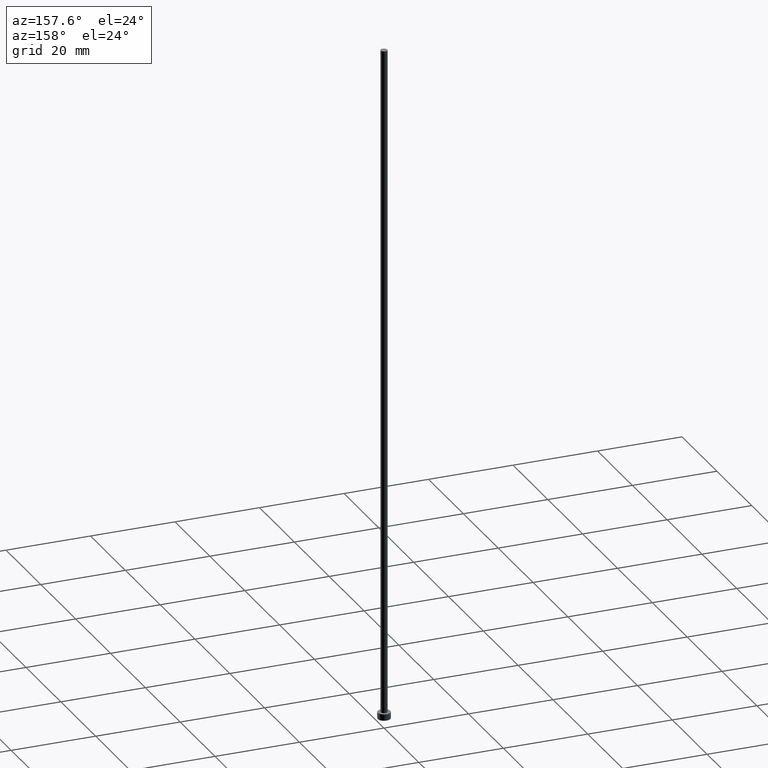
[diagram: clean part render]
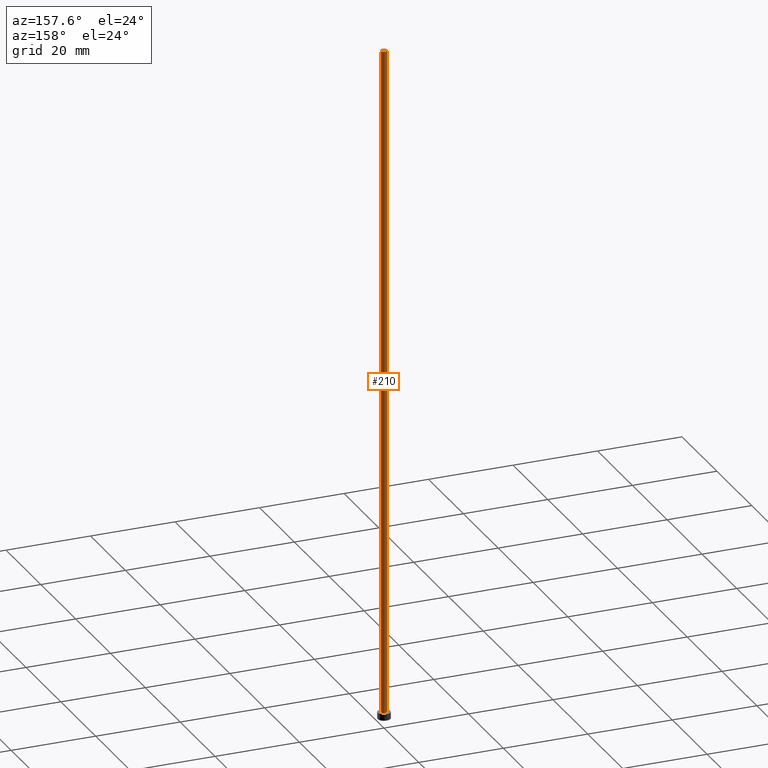
[diagram: same view with one face highlighted and labeled with its STEP entity id]
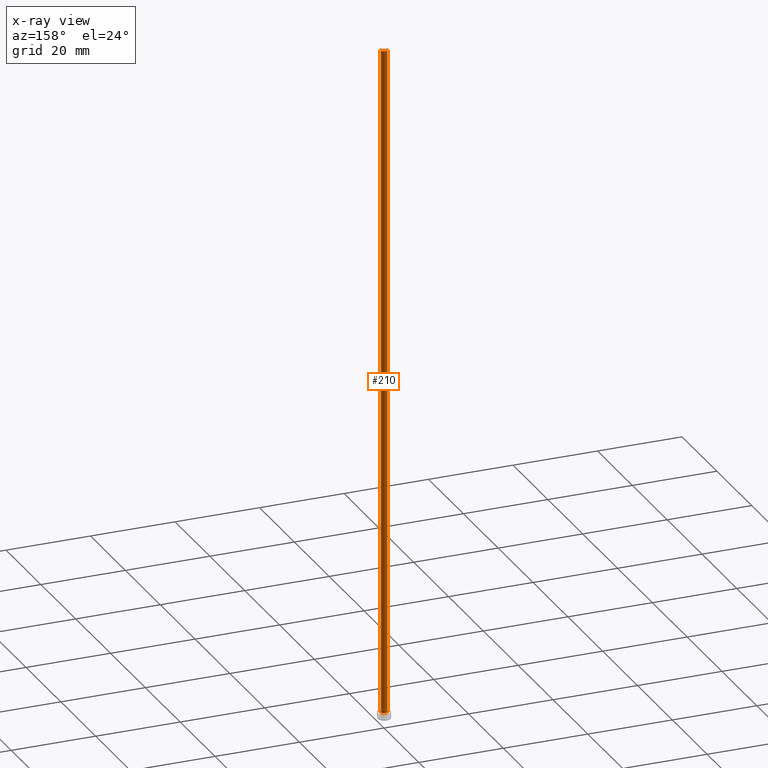
[diagram: x-ray of the same camera — body ghosted, the highlighted face saturated]
A machine part, auxiliary view. The second image highlights one B-rep face of the part: STEP entity #210.
The next image is the same camera in x-ray: the body ghosted, the highlighted face saturated — about 0% of this face is hidden behind the body in this view.
In plain terms, the highlighted cylindrical surface (edge-blend (fillet) strip) has radius 0.8 mm, axis along (-0, -0, -1).
Its self-contained STEP definition (entity closure, byte-faithful):
#2 = EDGE_CURVE ( 'NONE', #115, #222, #202, .T. ) ;
#6 = VERTEX_POINT ( 'NONE', #34 ) ;
#11 = DIRECTION ( 'NONE',  ( 1.000000000000000000, 0.000000000000000000, 0.000000000000000000 ) ) ;
#13 = VERTEX_POINT ( 'NONE', #116 ) ;
#14 = ORIENTED_EDGE ( 'NONE', *, *, #118, .T. ) ;
#15 = LINE ( 'NONE', #52, #134 ) ;
#33 = FACE_OUTER_BOUND ( 'NONE', #94, .T. ) ;
#34 = CARTESIAN_POINT ( 'NONE',  ( 0.8000000000000000444, 9.797174393178826150E-17, 1.500000000000000000 ) ) ;
#45 = DIRECTION ( 'NONE',  ( -0.000000000000000000, -0.000000000000000000, -1.000000000000000000 ) ) ;
#52 = CARTESIAN_POINT ( 'NONE',  ( 0.8000000000000000444, 9.797174393178826150E-17, 160.0000000000000000 ) ) ;
#67 = DIRECTION ( 'NONE',  ( 0.000000000000000000, 0.000000000000000000, 1.000000000000000000 ) ) ;
#78 = AXIS2_PLACEMENT_3D ( 'NONE', #127, #147, #11 ) ;
#94 = EDGE_LOOP ( 'NONE', ( #206, #162, #14, #183 ) ) ;
#111 = CARTESIAN_POINT ( 'NONE',  ( 0.8000000000000000444, 9.797174393178826150E-17, 160.0000000000000000 ) ) ;
#112 = CYLINDRICAL_SURFACE ( 'NONE', #208, 0.8000000000000000444 ) ;
#115 = VERTEX_POINT ( 'NONE', #111 ) ;
#116 = CARTESIAN_POINT ( 'NONE',  ( -0.8000000000000000444, 0.000000000000000000, 1.500000000000000000 ) ) ;
#118 = EDGE_CURVE ( 'NONE', #6, #13, #188, .T. ) ;
#122 = DIRECTION ( 'NONE',  ( -0.000000000000000000, -0.000000000000000000, -1.000000000000000000 ) ) ;
#127 = CARTESIAN_POINT ( 'NONE',  ( 0.000000000000000000, 0.000000000000000000, 1.500000000000000000 ) ) ;
#134 = VECTOR ( 'NONE', #228, 1000.000000000000000 ) ;
#139 = AXIS2_PLACEMENT_3D ( 'NONE', #165, #67, #226 ) ;
#143 = CARTESIAN_POINT ( 'NONE',  ( 0.000000000000000000, 0.000000000000000000, 160.0000000000000000 ) ) ;
#147 = DIRECTION ( 'NONE',  ( 0.000000000000000000, 0.000000000000000000, 1.000000000000000000 ) ) ;
#156 = LINE ( 'NONE', #218, #255 ) ;
#162 = ORIENTED_EDGE ( 'NONE', *, *, #232, .T. ) ;
#165 = CARTESIAN_POINT ( 'NONE',  ( 0.000000000000000000, 0.000000000000000000, 160.0000000000000000 ) ) ;
#172 = EDGE_CURVE ( 'NONE', #222, #13, #156, .T. ) ;
#179 = CARTESIAN_POINT ( 'NONE',  ( -0.8000000000000000444, 0.000000000000000000, 160.0000000000000000 ) ) ;
#183 = ORIENTED_EDGE ( 'NONE', *, *, #172, .F. ) ;
#188 = CIRCLE ( 'NONE', #78, 0.8000000000000000444 ) ;
#197 = DIRECTION ( 'NONE',  ( -1.000000000000000000, 0.000000000000000000, 0.000000000000000000 ) ) ;
#202 = CIRCLE ( 'NONE', #139, 0.8000000000000000444 ) ;
#206 = ORIENTED_EDGE ( 'NONE', *, *, #2, .F. ) ;
#208 = AXIS2_PLACEMENT_3D ( 'NONE', #143, #122, #197 ) ;
#210 = ADVANCED_FACE ( 'NONE', ( #33 ), #112, .T. ) ;
#218 = CARTESIAN_POINT ( 'NONE',  ( -0.8000000000000000444, 0.000000000000000000, 160.0000000000000000 ) ) ;
#222 = VERTEX_POINT ( 'NONE', #179 ) ;
#226 = DIRECTION ( 'NONE',  ( 1.000000000000000000, 0.000000000000000000, 0.000000000000000000 ) ) ;
#228 = DIRECTION ( 'NONE',  ( -0.000000000000000000, -0.000000000000000000, -1.000000000000000000 ) ) ;
#232 = EDGE_CURVE ( 'NONE', #115, #6, #15, .T. ) ;
#255 = VECTOR ( 'NONE', #45, 1000.000000000000000 ) ;